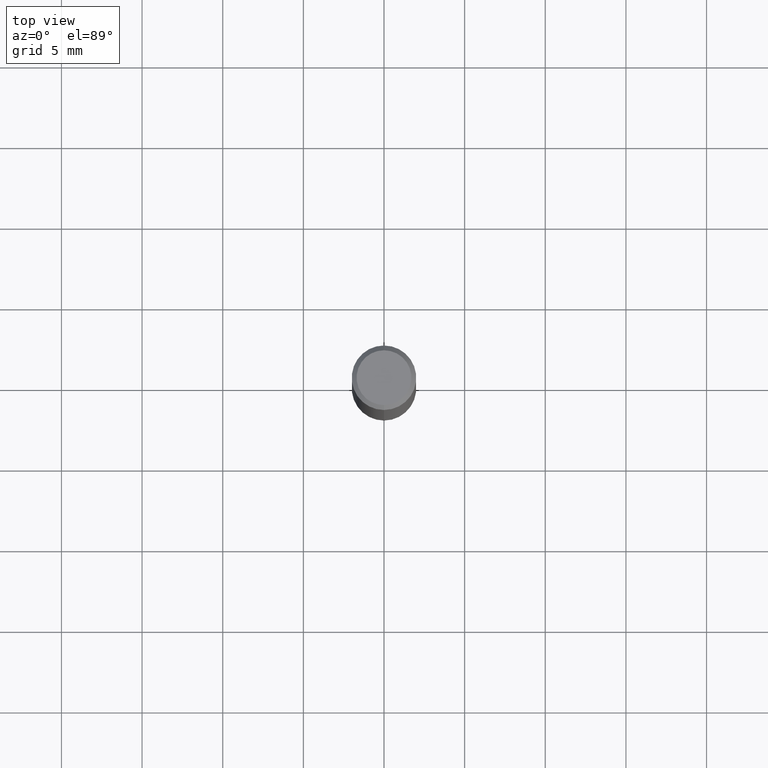
[diagram: clean part render]
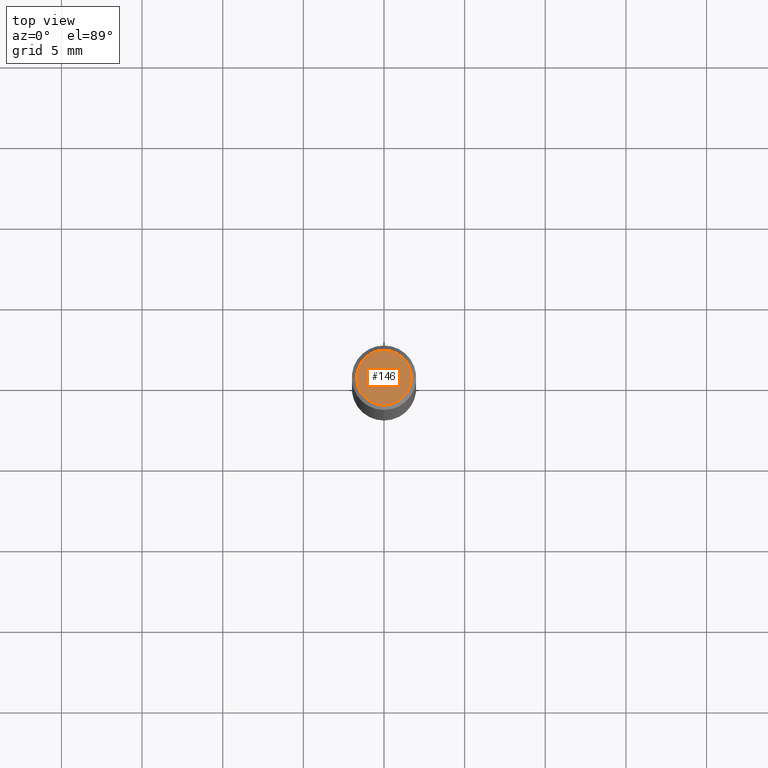
[diagram: same view with one face highlighted and labeled with its STEP entity id]
A machine part, top view. The second image highlights one B-rep face of the part: STEP entity #146.
In plain terms, the highlighted planar face has unit normal (-0, 0, 1).
Its self-contained STEP definition (entity closure, byte-faithful):
#124=EDGE_CURVE('',#214,#156,#267,.T.);
#146=ADVANCED_FACE('',(#293),#294,.T.);
#156=VERTEX_POINT('',#305);
#198=EDGE_CURVE('',#156,#214,#353,.T.);
#214=VERTEX_POINT('',#372);
#267=CIRCLE('',#429,1.7);
#293=FACE_OUTER_BOUND('',#461,.T.);
#294=PLANE('',#462);
#305=CARTESIAN_POINT('',(0.0,1.7,0.0));
#353=CIRCLE('',#537,1.7);
#372=CARTESIAN_POINT('',(2.08183080149804E-016,-1.7,0.0));
#429=AXIS2_PLACEMENT_3D('',#587,#588,#589);
#461=EDGE_LOOP('',(#627,#628));
#462=AXIS2_PLACEMENT_3D('',#629,#630,#631);
#537=AXIS2_PLACEMENT_3D('',#708,#709,#710);
#587=CARTESIAN_POINT('',(0.0,0.0,0.0));
#588=DIRECTION('',(0.0,0.0,-1.0));
#589=DIRECTION('',(0.0,1.0,0.0));
#627=ORIENTED_EDGE('',*,*,#198,.F.);
#628=ORIENTED_EDGE('',*,*,#124,.F.);
#629=CARTESIAN_POINT('',(0.0,0.85,0.0));
#630=DIRECTION('',(-0.0,0.0,1.0));
#631=DIRECTION('',(0.0,-1.0,0.0));
#708=CARTESIAN_POINT('',(0.0,0.0,0.0));
#709=DIRECTION('',(0.0,0.0,-1.0));
#710=DIRECTION('',(0.0,1.0,0.0));